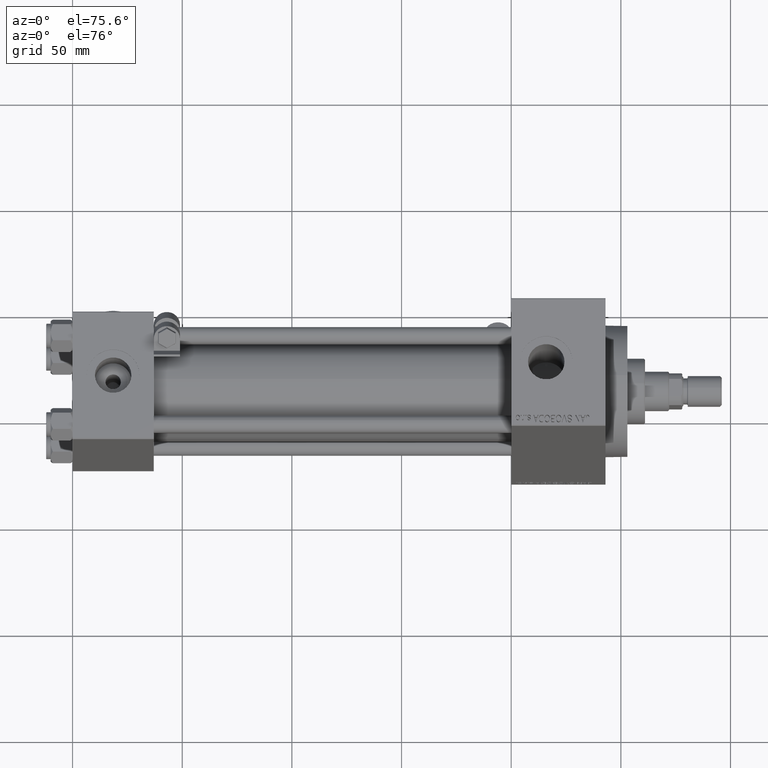
[diagram: clean part render]
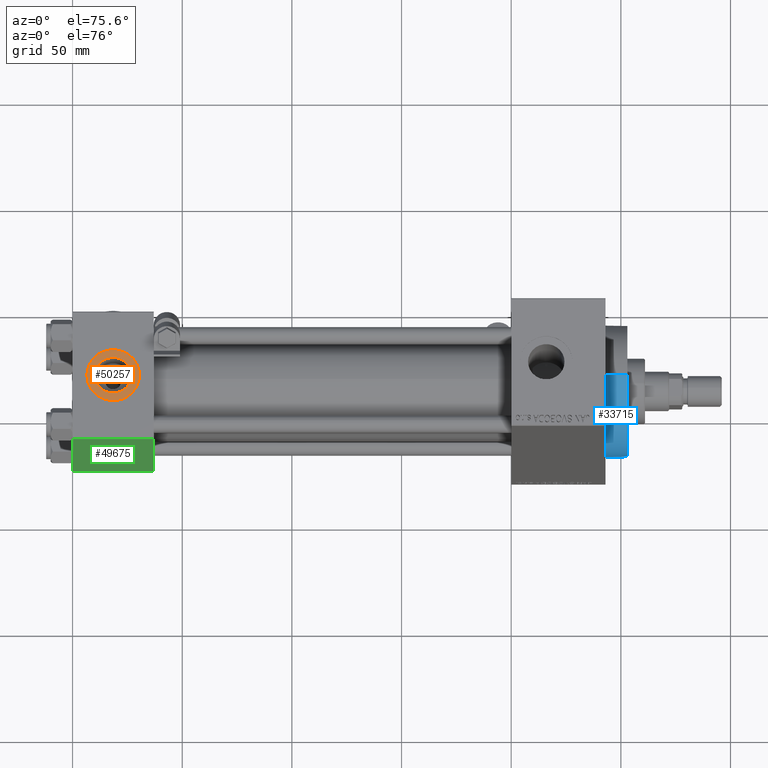
[diagram: same view with three faces highlighted in distinct colors, each labeled with its STEP entity id]
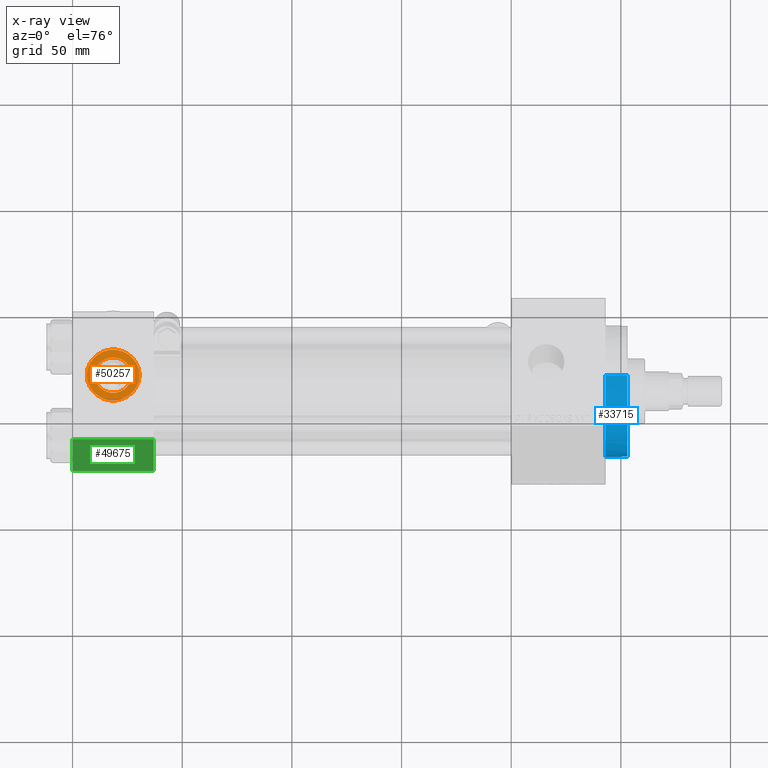
[diagram: x-ray of the same camera — body ghosted, the three highlighted faces saturated]
A machine part, auxiliary view with three faces highlighted in distinct colors.
The next image is the same camera in x-ray (body ghosted, the three faces saturated) — at least one of them is partly hidden behind the body in this view.
Their STEP definitions:

[orange] entity #50257 — the highlighted planar face has unit normal (0, 0, 1).
#524 = CARTESIAN_POINT ( 'NONE',  ( 18.50000000000000000, -3.469446951953614978E-15, 29.79999999999999716 ) ) ;
#863 = CARTESIAN_POINT ( 'NONE',  ( 30.50000000000000000, -3.469446951953614978E-15, 29.79999999999999716 ) ) ;
#1411 = DIRECTION ( 'NONE',  ( 1.000000000000000000, 0.000000000000000000, 0.000000000000000000 ) ) ;
#1867 = CIRCLE ( 'NONE', #9255, 12.00000000000000000 ) ;
#2581 = CARTESIAN_POINT ( 'NONE',  ( 18.50000000000000000, -3.469446951953614978E-15, 29.79999999999999716 ) ) ;
#6451 = ORIENTED_EDGE ( 'NONE', *, *, #31643, .F. ) ;
#7970 = DIRECTION ( 'NONE',  ( 1.000000000000000000, 0.000000000000000000, 0.000000000000000000 ) ) ;
#9255 = AXIS2_PLACEMENT_3D ( 'NONE', #524, #46779, #7970 ) ;
#10222 = EDGE_CURVE ( 'NONE', #11489, #21323, #1867, .T. ) ;
#10673 = EDGE_LOOP ( 'NONE', ( #6451, #31436 ) ) ;
#10927 = CARTESIAN_POINT ( 'NONE',  ( 26.82999999999999829, -3.469446951953614978E-15, 29.79999999999999716 ) ) ;
#11489 = VERTEX_POINT ( 'NONE', #863 ) ;
#13491 = DIRECTION ( 'NONE',  ( 0.000000000000000000, 0.000000000000000000, 1.000000000000000000 ) ) ;
#14218 = CIRCLE ( 'NONE', #33113, 12.00000000000000000 ) ;
#14411 = DIRECTION ( 'NONE',  ( 0.000000000000000000, 0.000000000000000000, 1.000000000000000000 ) ) ;
#14859 = VERTEX_POINT ( 'NONE', #10927 ) ;
#16164 = CARTESIAN_POINT ( 'NONE',  ( 18.50000000000000000, -3.469446951953614978E-15, 29.79999999999999716 ) ) ;
#21323 = VERTEX_POINT ( 'NONE', #38708 ) ;
#22356 = DIRECTION ( 'NONE',  ( 1.000000000000000000, 0.000000000000000000, 0.000000000000000000 ) ) ;
#24737 = CARTESIAN_POINT ( 'NONE',  ( 18.50000000000000000, -3.469446951953614978E-15, 29.79999999999999716 ) ) ;
#26757 = FACE_OUTER_BOUND ( 'NONE', #42602, .T. ) ;
#28972 = AXIS2_PLACEMENT_3D ( 'NONE', #46539, #30876, #31123 ) ;
#30876 = DIRECTION ( 'NONE',  ( 0.000000000000000000, 0.000000000000000000, 1.000000000000000000 ) ) ;
#31001 = CARTESIAN_POINT ( 'NONE',  ( 10.16999999999999638, -2.449316168263869821E-15, 29.79999999999999716 ) ) ;
#31123 = DIRECTION ( 'NONE',  ( 1.000000000000000000, 0.000000000000000000, -0.000000000000000000 ) ) ;
#31436 = ORIENTED_EDGE ( 'NONE', *, *, #38353, .F. ) ;
#31643 = EDGE_CURVE ( 'NONE', #14859, #41909, #43167, .T. ) ;
#31714 = ORIENTED_EDGE ( 'NONE', *, *, #10222, .T. ) ;
#33113 = AXIS2_PLACEMENT_3D ( 'NONE', #2581, #14411, #22356 ) ;
#36745 = AXIS2_PLACEMENT_3D ( 'NONE', #24737, #39945, #47888 ) ;
#37658 = CIRCLE ( 'NONE', #36745, 8.330000000000000071 ) ;
#37746 = ORIENTED_EDGE ( 'NONE', *, *, #48330, .T. ) ;
#38353 = EDGE_CURVE ( 'NONE', #41909, #14859, #37658, .T. ) ;
#38708 = CARTESIAN_POINT ( 'NONE',  ( 6.499999999999997335, -1.999870792976790833E-15, 29.79999999999999716 ) ) ;
#39060 = AXIS2_PLACEMENT_3D ( 'NONE', #16164, #13491, #1411 ) ;
#39945 = DIRECTION ( 'NONE',  ( 0.000000000000000000, 0.000000000000000000, 1.000000000000000000 ) ) ;
#41909 = VERTEX_POINT ( 'NONE', #31001 ) ;
#42602 = EDGE_LOOP ( 'NONE', ( #31714, #37746 ) ) ;
#43167 = CIRCLE ( 'NONE', #39060, 8.330000000000000071 ) ;
#43457 = FACE_BOUND ( 'NONE', #10673, .T. ) ;
#46539 = CARTESIAN_POINT ( 'NONE',  ( 18.50000000000000000, -3.469446951953614978E-15, 29.79999999999999716 ) ) ;
#46779 = DIRECTION ( 'NONE',  ( 0.000000000000000000, 0.000000000000000000, 1.000000000000000000 ) ) ;
#47044 = PLANE ( 'NONE',  #28972 ) ;
#47888 = DIRECTION ( 'NONE',  ( 1.000000000000000000, 0.000000000000000000, 0.000000000000000000 ) ) ;
#48330 = EDGE_CURVE ( 'NONE', #21323, #11489, #14218, .T. ) ;
#50257 = ADVANCED_FACE ( 'NONE', ( #43457, #26757 ), #47044, .T. ) ;

[blue] entity #33715 — the highlighted cylindrical surface (partial cylindrical patch) has radius 30 mm, axis along (-1, -0, -0).
#2360 = CARTESIAN_POINT ( 'NONE',  ( 253.0000000000000000, 0.000000000000000000, 0.000000000000000000 ) ) ;
#2622 = EDGE_CURVE ( 'NONE', #12700, #7397, #32120, .T. ) ;
#3138 = EDGE_CURVE ( 'NONE', #9618, #14336, #34587, .T. ) ;
#3216 = EDGE_CURVE ( 'NONE', #7397, #14336, #24365, .T. ) ;
#3443 = DIRECTION ( 'NONE',  ( 1.000000000000000000, 0.000000000000000000, 0.000000000000000000 ) ) ;
#4108 = ORIENTED_EDGE ( 'NONE', *, *, #3138, .T. ) ;
#4833 = CARTESIAN_POINT ( 'NONE',  ( 253.0000000000000000, 3.673940397442059178E-15, -30.00000000000000000 ) ) ;
#5374 = ORIENTED_EDGE ( 'NONE', *, *, #20967, .T. ) ;
#5725 = EDGE_CURVE ( 'NONE', #12700, #28930, #47179, .T. ) ;
#5916 = AXIS2_PLACEMENT_3D ( 'NONE', #32048, #31050, #46721 ) ;
#6334 = EDGE_LOOP ( 'NONE', ( #44403, #26988, #35460, #5374, #4108 ) ) ;
#7397 = VERTEX_POINT ( 'NONE', #44408 ) ;
#9618 = VERTEX_POINT ( 'NONE', #17303 ) ;
#10388 = AXIS2_PLACEMENT_3D ( 'NONE', #2360, #22138, #13927 ) ;
#11787 = DIRECTION ( 'NONE',  ( 1.000000000000000000, 0.000000000000000000, 0.000000000000000000 ) ) ;
#12700 = VERTEX_POINT ( 'NONE', #49351 ) ;
#13927 = DIRECTION ( 'NONE',  ( 0.000000000000000000, 0.000000000000000000, 1.000000000000000000 ) ) ;
#14336 = VERTEX_POINT ( 'NONE', #18455 ) ;
#17303 = CARTESIAN_POINT ( 'NONE',  ( 243.0000000000000000, -30.00000000000000000, 0.000000000000000000 ) ) ;
#18455 = CARTESIAN_POINT ( 'NONE',  ( 243.0000000000000000, 3.673940397442059178E-15, -30.00000000000000000 ) ) ;
#19375 = CARTESIAN_POINT ( 'NONE',  ( 253.0000000000000000, 0.000000000000000000, 0.000000000000000000 ) ) ;
#19687 = CARTESIAN_POINT ( 'NONE',  ( 253.0000000000000000, 0.000000000000000000, 30.00000000000000000 ) ) ;
#20506 = DIRECTION ( 'NONE',  ( -1.000000000000000000, -0.000000000000000000, -0.000000000000000000 ) ) ;
#20590 = VECTOR ( 'NONE', #35370, 1000.000000000000000 ) ;
#20967 = EDGE_CURVE ( 'NONE', #28930, #9618, #41217, .T. ) ;
#22138 = DIRECTION ( 'NONE',  ( -1.000000000000000000, -0.000000000000000000, -0.000000000000000000 ) ) ;
#23478 = DIRECTION ( 'NONE',  ( 0.000000000000000000, 0.000000000000000000, -1.000000000000000000 ) ) ;
#24365 = LINE ( 'NONE', #4833, #50164 ) ;
#26248 = CYLINDRICAL_SURFACE ( 'NONE', #10388, 30.00000000000000000 ) ;
#26988 = ORIENTED_EDGE ( 'NONE', *, *, #2622, .F. ) ;
#28600 = CARTESIAN_POINT ( 'NONE',  ( 243.0000000000000000, 0.000000000000000000, 30.00000000000000000 ) ) ;
#28930 = VERTEX_POINT ( 'NONE', #28600 ) ;
#30823 = DIRECTION ( 'NONE',  ( 0.000000000000000000, 0.000000000000000000, -1.000000000000000000 ) ) ;
#31050 = DIRECTION ( 'NONE',  ( 1.000000000000000000, 0.000000000000000000, 0.000000000000000000 ) ) ;
#32048 = CARTESIAN_POINT ( 'NONE',  ( 243.0000000000000000, 0.000000000000000000, 0.000000000000000000 ) ) ;
#32120 = CIRCLE ( 'NONE', #46865, 30.00000000000000000 ) ;
#33715 = ADVANCED_FACE ( 'NONE', ( #49893 ), #26248, .T. ) ;
#34425 = CARTESIAN_POINT ( 'NONE',  ( 243.0000000000000000, 0.000000000000000000, 0.000000000000000000 ) ) ;
#34587 = CIRCLE ( 'NONE', #40311, 30.00000000000000000 ) ;
#35370 = DIRECTION ( 'NONE',  ( -1.000000000000000000, -0.000000000000000000, -0.000000000000000000 ) ) ;
#35460 = ORIENTED_EDGE ( 'NONE', *, *, #5725, .T. ) ;
#40311 = AXIS2_PLACEMENT_3D ( 'NONE', #34425, #11787, #30823 ) ;
#41217 = CIRCLE ( 'NONE', #5916, 30.00000000000000000 ) ;
#44403 = ORIENTED_EDGE ( 'NONE', *, *, #3216, .F. ) ;
#44408 = CARTESIAN_POINT ( 'NONE',  ( 253.0000000000000000, 3.673940397442059178E-15, -30.00000000000000000 ) ) ;
#46721 = DIRECTION ( 'NONE',  ( 0.000000000000000000, 0.000000000000000000, -1.000000000000000000 ) ) ;
#46865 = AXIS2_PLACEMENT_3D ( 'NONE', #19375, #3443, #23478 ) ;
#47179 = LINE ( 'NONE', #19687, #20590 ) ;
#49351 = CARTESIAN_POINT ( 'NONE',  ( 253.0000000000000000, 0.000000000000000000, 30.00000000000000000 ) ) ;
#49893 = FACE_OUTER_BOUND ( 'NONE', #6334, .T. ) ;
#50164 = VECTOR ( 'NONE', #20506, 1000.000000000000000 ) ;

[green] entity #49675 — the highlighted planar face has unit normal (0, 1, 0).
#478 = ORIENTED_EDGE ( 'NONE', *, *, #50144, .T. ) ;
#1365 = VERTEX_POINT ( 'NONE', #49184 ) ;
#1782 = CARTESIAN_POINT ( 'NONE',  ( 0.000000000000000000, -30.00000000000000000, 29.49999999999999289 ) ) ;
#2103 = CARTESIAN_POINT ( 'NONE',  ( 37.00000000000000000, -30.00000000000000000, 29.49999999999999289 ) ) ;
#2585 = ORIENTED_EDGE ( 'NONE', *, *, #43761, .T. ) ;
#3086 = LINE ( 'NONE', #37545, #7937 ) ;
#4555 = VERTEX_POINT ( 'NONE', #32903 ) ;
#5192 = VERTEX_POINT ( 'NONE', #1782 ) ;
#6641 = CARTESIAN_POINT ( 'NONE',  ( 37.00000000000000000, -30.00000000000000000, 29.99999999999999289 ) ) ;
#6728 = LINE ( 'NONE', #30627, #27870 ) ;
#6772 = VECTOR ( 'NONE', #38084, 1000.000000000000000 ) ;
#7937 = VECTOR ( 'NONE', #13637, 1000.000000000000000 ) ;
#10495 = CARTESIAN_POINT ( 'NONE',  ( 0.000000000000000000, -30.00000000000000000, 29.99999999999999289 ) ) ;
#10882 = AXIS2_PLACEMENT_3D ( 'NONE', #6641, #48552, #29026 ) ;
#12278 = CARTESIAN_POINT ( 'NONE',  ( 37.00000000000000000, -30.00000000000000000, -29.50000000000001776 ) ) ;
#13637 = DIRECTION ( 'NONE',  ( 0.000000000000000000, 0.000000000000000000, -1.000000000000000000 ) ) ;
#15128 = DIRECTION ( 'NONE',  ( 0.000000000000000000, 0.000000000000000000, -1.000000000000000000 ) ) ;
#17945 = EDGE_LOOP ( 'NONE', ( #34090, #2585, #34182, #478 ) ) ;
#18149 = VERTEX_POINT ( 'NONE', #12278 ) ;
#20812 = EDGE_CURVE ( 'NONE', #5192, #1365, #38006, .T. ) ;
#26426 = VECTOR ( 'NONE', #15128, 1000.000000000000000 ) ;
#27870 = VECTOR ( 'NONE', #38101, 1000.000000000000000 ) ;
#29026 = DIRECTION ( 'NONE',  ( 0.000000000000000000, -0.000000000000000000, 1.000000000000000000 ) ) ;
#30627 = CARTESIAN_POINT ( 'NONE',  ( 37.00000000000000000, -30.00000000000000000, -29.50000000000001776 ) ) ;
#32903 = CARTESIAN_POINT ( 'NONE',  ( 37.00000000000000000, -30.00000000000000000, 29.49999999999999289 ) ) ;
#33055 = EDGE_CURVE ( 'NONE', #4555, #18149, #3086, .T. ) ;
#34090 = ORIENTED_EDGE ( 'NONE', *, *, #20812, .T. ) ;
#34182 = ORIENTED_EDGE ( 'NONE', *, *, #33055, .F. ) ;
#37545 = CARTESIAN_POINT ( 'NONE',  ( 37.00000000000000000, -30.00000000000000000, 29.99999999999999289 ) ) ;
#38006 = LINE ( 'NONE', #10495, #26426 ) ;
#38084 = DIRECTION ( 'NONE',  ( -1.000000000000000000, 0.000000000000000000, 0.000000000000000000 ) ) ;
#38101 = DIRECTION ( 'NONE',  ( 1.000000000000000000, 0.000000000000000000, 0.000000000000000000 ) ) ;
#41608 = FACE_OUTER_BOUND ( 'NONE', #17945, .T. ) ;
#41675 = LINE ( 'NONE', #2103, #6772 ) ;
#43761 = EDGE_CURVE ( 'NONE', #1365, #18149, #6728, .T. ) ;
#48552 = DIRECTION ( 'NONE',  ( -0.000000000000000000, 1.000000000000000000, 0.000000000000000000 ) ) ;
#49184 = CARTESIAN_POINT ( 'NONE',  ( 0.000000000000000000, -30.00000000000000000, -29.50000000000001776 ) ) ;
#49554 = PLANE ( 'NONE',  #10882 ) ;
#49675 = ADVANCED_FACE ( 'NONE', ( #41608 ), #49554, .F. ) ;
#50144 = EDGE_CURVE ( 'NONE', #4555, #5192, #41675, .T. ) ;